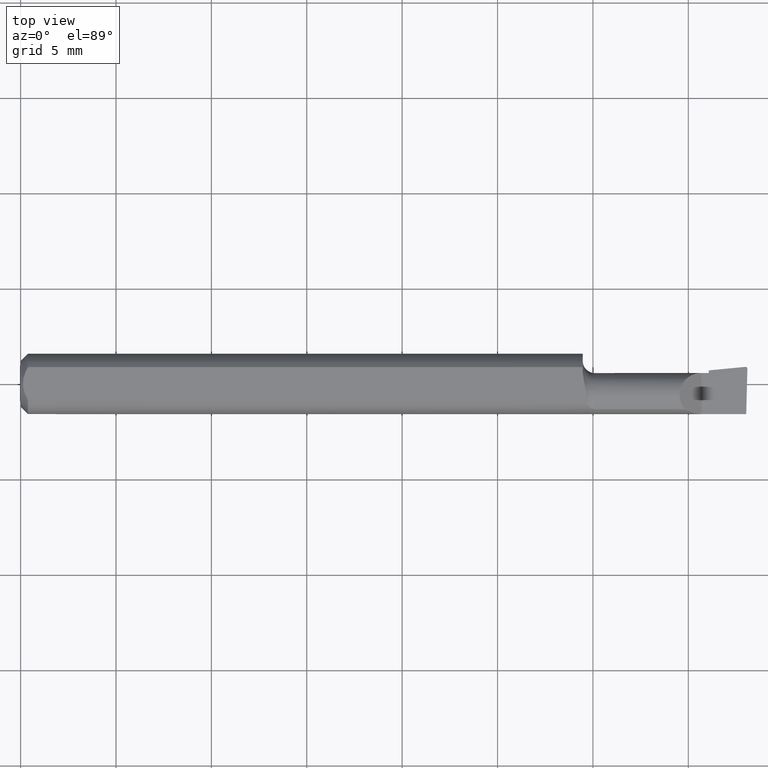
[diagram: clean part render]
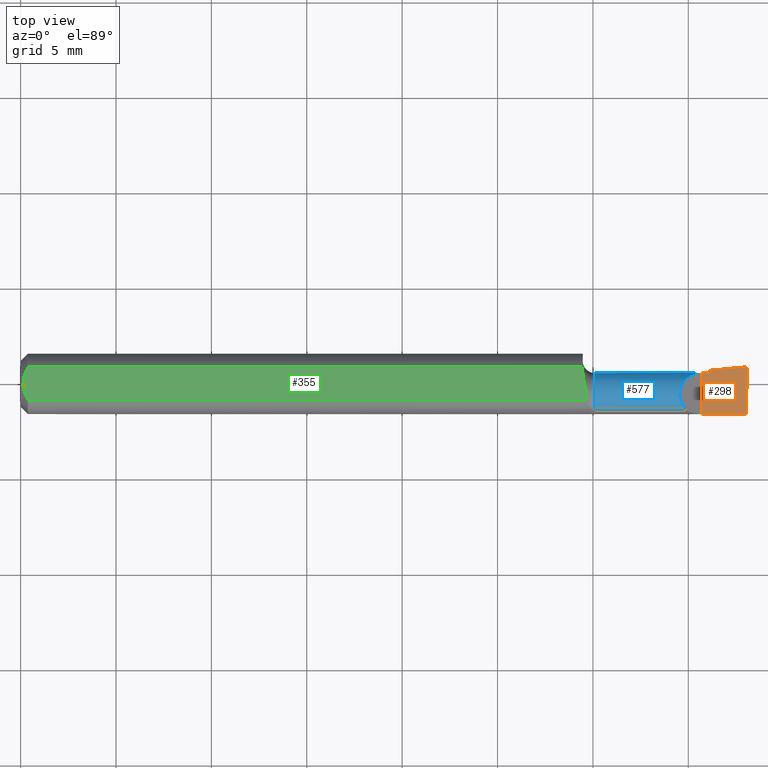
[diagram: same view with three faces highlighted in distinct colors, each labeled with its STEP entity id]
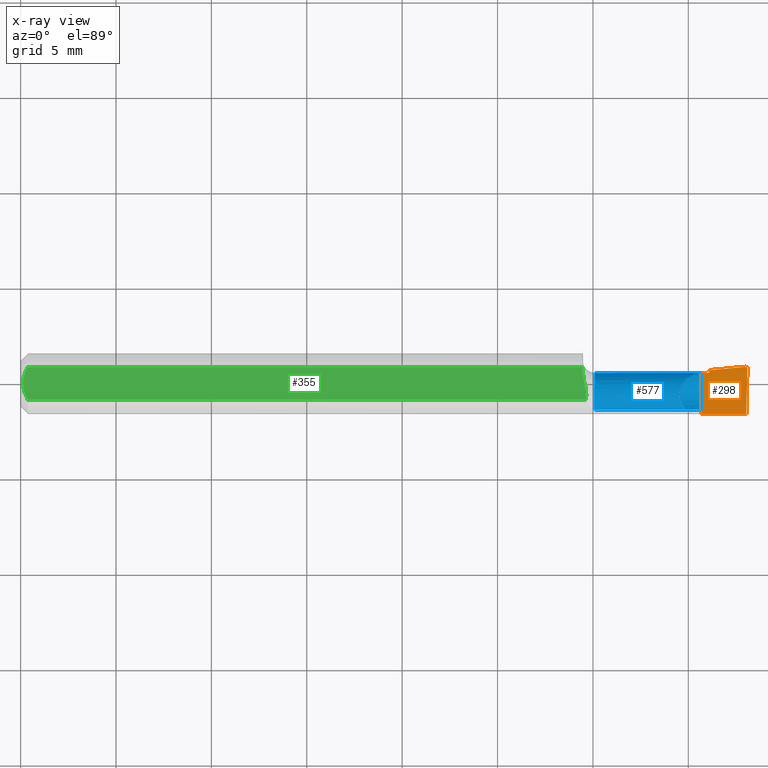
[diagram: x-ray of the same camera — body ghosted, the three highlighted faces saturated]
A machine part, top view with three faces highlighted in distinct colors.
The next image is the same camera in x-ray (body ghosted, the three faces saturated) — at least one of them is partly hidden behind the body in this view.
Their STEP definitions:

[orange] entity #298 — the highlighted planar face has unit normal (-0, 0, -1).
#3 = ORIENTED_EDGE ( 'NONE', *, *, #639, .F. ) ;
#5 = VECTOR ( 'NONE', #374, 39.37007874015748854 ) ;
#10 = DIRECTION ( 'NONE',  ( -1.000000000000000000, -0.0000000000000000000, -0.0000000000000000000 ) ) ;
#25 = PLANE ( 'NONE',  #479 ) ;
#42 = ORIENTED_EDGE ( 'NONE', *, *, #502, .T. ) ;
#44 = ORIENTED_EDGE ( 'NONE', *, *, #89, .F. ) ;
#52 = VERTEX_POINT ( 'NONE', #614 ) ;
#55 = LINE ( 'NONE', #487, #202 ) ;
#61 = CARTESIAN_POINT ( 'NONE',  ( 0.8971276994979847652, -0.02239999999999999977, 7.383056331043944924E-17 ) ) ;
#66 = CARTESIAN_POINT ( 'NONE',  ( 1.495634880358085672, 0.03522968678441162904, 5.345729797365519968E-19 ) ) ;
#69 = CARTESIAN_POINT ( 'NONE',  ( 1.499944638786153472, 0.03353584053852150942, 8.035340521517367735E-18 ) ) ;
#71 = ORIENTED_EDGE ( 'NONE', *, *, #536, .F. ) ;
#74 = CARTESIAN_POINT ( 'NONE',  ( 2.249639673992788601E-32, -0.06234999999999999570, 1.836970198721030427E-16 ) ) ;
#85 = LINE ( 'NONE', #189, #356 ) ;
#89 = EDGE_CURVE ( 'NONE', #52, #470, #357, .T. ) ;
#107 = VECTOR ( 'NONE', #595, 39.37007874015748143 ) ;
#111 = DIRECTION ( 'NONE',  ( -0.0000000000000000000, 1.000000000000000000, -0.0000000000000000000 ) ) ;
#115 = CARTESIAN_POINT ( 'NONE',  ( 1.499880855614015962, 0.03110005946548963576, 2.797005382439469068E-20 ) ) ;
#116 = EDGE_CURVE ( 'NONE', #470, #531, #55, .T. ) ;
#125 = CARTESIAN_POINT ( 'NONE',  ( 1.492525117049605887, -0.2498042633013223268, 9.154091479201484239E-19 ) ) ;
#131 = DIRECTION ( 'NONE',  ( -1.224646799147353947E-16, 0.0000000000000000000, -1.000000000000000000 ) ) ;
#149 = EDGE_LOOP ( 'NONE', ( #331, #579, #42, #71, #185, #3, #303, #44 ) ) ;
#182 = CARTESIAN_POINT ( 'NONE',  ( 1.496007920276498648, 0.03524764111161338836, 0.0000000000000000000 ) ) ;
#185 = ORIENTED_EDGE ( 'NONE', *, *, #511, .F. ) ;
#186 = CARTESIAN_POINT ( 'NONE',  ( 1.496007920276498648, 0.03524764111161338836, 0.0000000000000000000 ) ) ;
#189 = CARTESIAN_POINT ( 'NONE',  ( -2.563953169053420290E-19, 0.02264999999999996183, 1.836970198721030427E-16 ) ) ;
#202 = VECTOR ( 'NONE', #111, 39.37007874015748143 ) ;
#203 = VECTOR ( 'NONE', #550, 39.37007874015748854 ) ;
#206 =( BOUNDED_CURVE ( )  B_SPLINE_CURVE ( 3, ( #225, #69, #496, #186 ),
 .UNSPECIFIED., .F., .T. ) 
 B_SPLINE_CURVE_WITH_KNOTS ( ( 4, 4 ),
 ( 1.953092279228404671, 3.511516179717623309 ),
 .UNSPECIFIED. ) 
 CURVE ( )  GEOMETRIC_REPRESENTATION_ITEM ( )  RATIONAL_B_SPLINE_CURVE ( ( 1.000000000000000000, 0.8076450242550503589, 0.8076450242550503589, 1.000000000000000000 ) ) 
 REPRESENTATION_ITEM ( '' )  );
#223 = CARTESIAN_POINT ( 'NONE',  ( 1.495883579913029671, 0.03524764111161339530, 8.532676796529436165E-18 ) ) ;
#225 = CARTESIAN_POINT ( 'NONE',  ( 1.499880855614015962, 0.03110005946548963576, 2.797005382439469068E-20 ) ) ;
#250 = EDGE_CURVE ( 'NONE', #52, #570, #634, .T. ) ;
#269 = VERTEX_POINT ( 'NONE', #182 ) ;
#280 = CARTESIAN_POINT ( 'NONE',  ( 1.405000000000000249, -0.06235000000000005121, 1.163414459189985436E-17 ) ) ;
#285 = EDGE_CURVE ( 'NONE', #570, #269, #206, .T. ) ;
#298 = ADVANCED_FACE ( 'NONE', ( #387 ), #25, .F. ) ;
#303 = ORIENTED_EDGE ( 'NONE', *, *, #116, .F. ) ;
#318 =( BOUNDED_CURVE ( )  B_SPLINE_CURVE ( 3, ( #549, #223, #436, #66 ),
 .UNSPECIFIED., .F., .T. ) 
 B_SPLINE_CURVE_WITH_KNOTS ( ( 4, 4 ),
 ( 3.511516179717623309, 3.604018710826139671 ),
 .UNSPECIFIED. ) 
 CURVE ( )  GEOMETRIC_REPRESENTATION_ITEM ( )  RATIONAL_B_SPLINE_CURVE ( ( 1.000000000000000000, 0.9992870672494020834, 0.9992870672494020834, 1.000000000000000000 ) ) 
 REPRESENTATION_ITEM ( '' )  );
#331 = ORIENTED_EDGE ( 'NONE', *, *, #250, .T. ) ;
#356 = VECTOR ( 'NONE', #448, 39.37007874015748143 ) ;
#357 = LINE ( 'NONE', #74, #506 ) ;
#374 = DIRECTION ( 'NONE',  ( 0.9953961983671786307, 0.09584575252022466130, -1.219008768213809603E-16 ) ) ;
#387 = FACE_OUTER_BOUND ( 'NONE', #149, .T. ) ;
#397 = CARTESIAN_POINT ( 'NONE',  ( 1.420000000000000151, 0.02794687614419801361, 1.835460370743176819E-16 ) ) ;
#427 = CARTESIAN_POINT ( 'NONE',  ( 1.420000000000000151, 0.02265000000000000346, 1.836970198721031660E-16 ) ) ;
#431 = CARTESIAN_POINT ( 'NONE',  ( 1.405000000000000249, 0.02264999999999992714, 1.163414459189985436E-17 ) ) ;
#436 = CARTESIAN_POINT ( 'NONE',  ( 1.495759144559519527, 0.03524165206609279621, 8.547915732267098835E-18 ) ) ;
#441 = LINE ( 'NONE', #61, #5 ) ;
#448 = DIRECTION ( 'NONE',  ( 1.000000000000000000, 5.691349986800549142E-18, 0.0000000000000000000 ) ) ;
#470 = VERTEX_POINT ( 'NONE', #280 ) ;
#471 = VERTEX_POINT ( 'NONE', #601 ) ;
#479 = AXIS2_PLACEMENT_3D ( 'NONE', #653, #131, #498 ) ;
#487 = CARTESIAN_POINT ( 'NONE',  ( 1.405000000000000249, -0.2500000000000000555, 1.163414459189985436E-17 ) ) ;
#496 = CARTESIAN_POINT ( 'NONE',  ( 1.498346190944504830, 0.03524764111161336755, 8.231093924805310805E-18 ) ) ;
#498 = DIRECTION ( 'NONE',  ( -1.000000000000000000, 0.0000000000000000000, 1.224646799147353947E-16 ) ) ;
#502 = EDGE_CURVE ( 'NONE', #269, #471, #318, .T. ) ;
#506 = VECTOR ( 'NONE', #10, 39.37007874015748143 ) ;
#511 = EDGE_CURVE ( 'NONE', #542, #647, #603, .T. ) ;
#531 = VERTEX_POINT ( 'NONE', #431 ) ;
#536 = EDGE_CURVE ( 'NONE', #647, #471, #441, .T. ) ;
#542 = VERTEX_POINT ( 'NONE', #427 ) ;
#549 = CARTESIAN_POINT ( 'NONE',  ( 1.496007920276498648, 0.03524764111161338836, 0.0000000000000000000 ) ) ;
#550 = DIRECTION ( 'NONE',  ( 0.02617694830784707966, 0.9996573249755579260, -3.158139334220691399E-18 ) ) ;
#570 = VERTEX_POINT ( 'NONE', #115 ) ;
#579 = ORIENTED_EDGE ( 'NONE', *, *, #285, .T. ) ;
#595 = DIRECTION ( 'NONE',  ( -5.691349986800549142E-18, 1.000000000000000000, 6.969893544162626646E-34 ) ) ;
#601 = CARTESIAN_POINT ( 'NONE',  ( 1.495634880358085672, 0.03522968678441162904, 5.345729797365519968E-19 ) ) ;
#603 = LINE ( 'NONE', #645, #107 ) ;
#614 = CARTESIAN_POINT ( 'NONE',  ( 1.497433779686219379, -0.06235000000000005121, 3.231995301756449018E-19 ) ) ;
#634 = LINE ( 'NONE', #125, #203 ) ;
#639 = EDGE_CURVE ( 'NONE', #531, #542, #85, .T. ) ;
#645 = CARTESIAN_POINT ( 'NONE',  ( 1.420000000000000151, -0.2500000000000000555, 9.797174393178828616E-18 ) ) ;
#647 = VERTEX_POINT ( 'NONE', #397 ) ;
#653 = CARTESIAN_POINT ( 'NONE',  ( 1.500000000000000222, -0.2500000000000000555, 0.0000000000000000000 ) ) ;

[blue] entity #577 — the highlighted cylindrical surface (edge-blend (fillet) strip) has radius 1.1443 mm, axis along (-1, -0, -0).
#11 = CARTESIAN_POINT ( 'NONE',  ( 0.0000000000000000000, -0.02240000000000000324, 0.0000000000000000000 ) ) ;
#14 = CARTESIAN_POINT ( 'NONE',  ( 1.493589448587071544, -0.05267366071428577351, -0.03336177403790612644 ) ) ;
#27 = CIRCLE ( 'NONE', #113, 0.04504999999999999283 ) ;
#53 = VECTOR ( 'NONE', #668, 39.37007874015748143 ) ;
#81 = ORIENTED_EDGE ( 'NONE', *, *, #314, .T. ) ;
#85 = LINE ( 'NONE', #189, #356 ) ;
#112 = CIRCLE ( 'NONE', #324, 0.04504999999999997201 ) ;
#113 = AXIS2_PLACEMENT_3D ( 'NONE', #217, #583, #184 ) ;
#118 = ORIENTED_EDGE ( 'NONE', *, *, #619, .F. ) ;
#122 = CARTESIAN_POINT ( 'NONE',  ( 1.420000000000000151, 0.01811171944543692874, -0.01970540757188761136 ) ) ;
#143 = VERTEX_POINT ( 'NONE', #205 ) ;
#144 = CARTESIAN_POINT ( 'NONE',  ( 1.302500000000000213, -0.05267366071428577351, -0.03336177403790612644 ) ) ;
#150 = VERTEX_POINT ( 'NONE', #424 ) ;
#153 = AXIS2_PLACEMENT_3D ( 'NONE', #11, #533, #476 ) ;
#161 = VECTOR ( 'NONE', #443, 39.37007874015748143 ) ;
#162 = EDGE_LOOP ( 'NONE', ( #260, #637, #421, #253, #388, #465, #621, #118, #81, #261 ) ) ;
#165 = DIRECTION ( 'NONE',  ( 1.000000000000000000, 5.691349986800549142E-18, 0.0000000000000000000 ) ) ;
#179 = CARTESIAN_POINT ( 'NONE',  ( 1.185000000000000275, -0.02239999999999999630, 0.0000000000000000000 ) ) ;
#184 = DIRECTION ( 'NONE',  ( 0.0000000000000000000, -1.000000000000000000, 0.0000000000000000000 ) ) ;
#189 = CARTESIAN_POINT ( 'NONE',  ( -2.563953169053420290E-19, 0.02264999999999996183, 1.836970198721030427E-16 ) ) ;
#194 = EDGE_CURVE ( 'NONE', #213, #531, #371, .T. ) ;
#205 = CARTESIAN_POINT ( 'NONE',  ( 1.420000000000000151, -0.001476535193823069530, -0.03989625446711349277 ) ) ;
#213 = VERTEX_POINT ( 'NONE', #643 ) ;
#217 = CARTESIAN_POINT ( 'NONE',  ( 1.420000000000000151, -0.02239999999999999630, 0.0000000000000000000 ) ) ;
#219 = CARTESIAN_POINT ( 'NONE',  ( 1.371638225962093838, -0.05267366071428578739, 0.03336177403790611951 ) ) ;
#226 = LINE ( 'NONE', #144, #53 ) ;
#229 = DIRECTION ( 'NONE',  ( 1.000000000000000000, 5.691349986800549142E-18, 0.0000000000000000000 ) ) ;
#235 = DIRECTION ( 'NONE',  ( -1.000000000000000000, -5.691349986800549142E-18, -0.0000000000000000000 ) ) ;
#244 = VERTEX_POINT ( 'NONE', #122 ) ;
#249 = VERTEX_POINT ( 'NONE', #547 ) ;
#251 = VECTOR ( 'NONE', #165, 39.37007874015748143 ) ;
#253 = ORIENTED_EDGE ( 'NONE', *, *, #576, .T. ) ;
#254 = AXIS2_PLACEMENT_3D ( 'NONE', #179, #493, #439 ) ;
#260 = ORIENTED_EDGE ( 'NONE', *, *, #545, .F. ) ;
#261 = ORIENTED_EDGE ( 'NONE', *, *, #463, .F. ) ;
#266 = CARTESIAN_POINT ( 'NONE',  ( 1.492650040401416689, -0.03372388044486964581, -0.04504999999999998589 ) ) ;
#270 = CARTESIAN_POINT ( 'NONE',  ( 1.405000000000000249, 0.02264999999999992714, 1.163414459189985436E-17 ) ) ;
#302 = VERTEX_POINT ( 'NONE', #336 ) ;
#314 = EDGE_CURVE ( 'NONE', #143, #670, #499, .T. ) ;
#316 = VERTEX_POINT ( 'NONE', #503 ) ;
#324 = AXIS2_PLACEMENT_3D ( 'NONE', #552, #229, #604 ) ;
#336 = CARTESIAN_POINT ( 'NONE',  ( 1.185000000000000275, -0.05267366071428584290, -0.03336177403790605706 ) ) ;
#351 = CIRCLE ( 'NONE', #254, 0.04504999999999996507 ) ;
#356 = VECTOR ( 'NONE', #448, 39.37007874015748143 ) ;
#358 = CARTESIAN_POINT ( 'NONE',  ( 1.420000000000000151, -0.02239999999999999630, -0.04504999999999998589 ) ) ;
#371 =( BOUNDED_CURVE ( )  B_SPLINE_CURVE ( 3, ( #219, #486, #593, #270 ),
 .UNSPECIFIED., .F., .F. ) 
 B_SPLINE_CURVE_WITH_KNOTS ( ( 4, 4 ),
 ( 5.546277306536651963, 7.853981633974482790 ),
 .UNSPECIFIED. ) 
 CURVE ( )  GEOMETRIC_REPRESENTATION_ITEM ( )  RATIONAL_B_SPLINE_CURVE ( ( 1.000000000000000000, 0.6033122017619988453, 0.6033122017619988453, 1.000000000000000000 ) ) 
 REPRESENTATION_ITEM ( '' )  );
#373 = CYLINDRICAL_SURFACE ( 'NONE', #153, 0.04504999999999997201 ) ;
#388 = ORIENTED_EDGE ( 'NONE', *, *, #194, .T. ) ;
#402 = EDGE_CURVE ( 'NONE', #249, #302, #226, .T. ) ;
#417 = LINE ( 'NONE', #495, #161 ) ;
#421 = ORIENTED_EDGE ( 'NONE', *, *, #469, .F. ) ;
#424 = CARTESIAN_POINT ( 'NONE',  ( 1.185000000000000275, -0.05267366071428580820, 0.03336177403790609175 ) ) ;
#427 = CARTESIAN_POINT ( 'NONE',  ( 1.420000000000000151, 0.02265000000000000346, 1.836970198721031660E-16 ) ) ;
#431 = CARTESIAN_POINT ( 'NONE',  ( 1.405000000000000249, 0.02264999999999992714, 1.163414459189985436E-17 ) ) ;
#433 = EDGE_CURVE ( 'NONE', #542, #244, #27, .T. ) ;
#439 = DIRECTION ( 'NONE',  ( 0.0000000000000000000, -1.000000000000000000, 0.0000000000000000000 ) ) ;
#443 = DIRECTION ( 'NONE',  ( -1.000000000000000000, 5.691349986800548372E-18, -0.0000000000000000000 ) ) ;
#448 = DIRECTION ( 'NONE',  ( 1.000000000000000000, 5.691349986800549142E-18, 0.0000000000000000000 ) ) ;
#463 = EDGE_CURVE ( 'NONE', #316, #670, #417, .T. ) ;
#465 = ORIENTED_EDGE ( 'NONE', *, *, #639, .T. ) ;
#469 = EDGE_CURVE ( 'NONE', #150, #302, #351, .T. ) ;
#476 = DIRECTION ( 'NONE',  ( 5.691349986800549913E-18, -1.000000000000000000, 0.0000000000000000000 ) ) ;
#486 = CARTESIAN_POINT ( 'NONE',  ( 1.341051366671215384, -0.01896673977657555368, 0.06394863332878404638 ) ) ;
#493 = DIRECTION ( 'NONE',  ( -1.000000000000000000, -5.691349986800549142E-18, -0.0000000000000000000 ) ) ;
#495 = CARTESIAN_POINT ( 'NONE',  ( 1.500000000000000222, -0.02239999999999999630, -0.04504999999999998589 ) ) ;
#499 = CIRCLE ( 'NONE', #522, 0.04504999999999999283 ) ;
#503 = CARTESIAN_POINT ( 'NONE',  ( 1.492946566646605078, -0.02239999999999999630, -0.04504999999999998589 ) ) ;
#522 = AXIS2_PLACEMENT_3D ( 'NONE', #558, #235, #612 ) ;
#531 = VERTEX_POINT ( 'NONE', #431 ) ;
#533 = DIRECTION ( 'NONE',  ( -1.000000000000000000, -5.691349986800549142E-18, -0.0000000000000000000 ) ) ;
#535 = LINE ( 'NONE', #586, #251 ) ;
#542 = VERTEX_POINT ( 'NONE', #427 ) ;
#545 = EDGE_CURVE ( 'NONE', #249, #316, #674, .T. ) ;
#547 = CARTESIAN_POINT ( 'NONE',  ( 1.493589448587071544, -0.05267366071428577351, -0.03336177403790612644 ) ) ;
#552 = CARTESIAN_POINT ( 'NONE',  ( 1.420000000000000151, -0.02239999999999999630, 0.0000000000000000000 ) ) ;
#558 = CARTESIAN_POINT ( 'NONE',  ( 1.420000000000000151, -0.02239999999999999630, 0.0000000000000000000 ) ) ;
#576 = EDGE_CURVE ( 'NONE', #150, #213, #535, .T. ) ;
#577 = ADVANCED_FACE ( 'NONE', ( #658 ), #373, .T. ) ;
#583 = DIRECTION ( 'NONE',  ( -1.000000000000000000, -5.691349986800549142E-18, -0.0000000000000000000 ) ) ;
#586 = CARTESIAN_POINT ( 'NONE',  ( 1.302500000000000213, -0.05267366071428577351, 0.03336177403790612644 ) ) ;
#589 = CARTESIAN_POINT ( 'NONE',  ( 1.492946566646605078, -0.02239999999999999630, -0.04504999999999998589 ) ) ;
#593 = CARTESIAN_POINT ( 'NONE',  ( 1.359483931624303699, 0.02264999999999997571, 0.04551606837569584230 ) ) ;
#604 = DIRECTION ( 'NONE',  ( 0.0000000000000000000, -1.000000000000000000, 1.776356839400250465E-15 ) ) ;
#612 = DIRECTION ( 'NONE',  ( 0.0000000000000000000, -1.000000000000000000, 0.0000000000000000000 ) ) ;
#619 = EDGE_CURVE ( 'NONE', #143, #244, #112, .T. ) ;
#621 = ORIENTED_EDGE ( 'NONE', *, *, #433, .T. ) ;
#637 = ORIENTED_EDGE ( 'NONE', *, *, #402, .T. ) ;
#639 = EDGE_CURVE ( 'NONE', #531, #542, #85, .T. ) ;
#641 = CARTESIAN_POINT ( 'NONE',  ( 1.492874371667013866, -0.04428776192107813231, -0.04097143695815294584 ) ) ;
#643 = CARTESIAN_POINT ( 'NONE',  ( 1.371638225962093838, -0.05267366071428578739, 0.03336177403790611951 ) ) ;
#658 = FACE_OUTER_BOUND ( 'NONE', #162, .T. ) ;
#668 = DIRECTION ( 'NONE',  ( -1.000000000000000000, -5.691349986800549142E-18, -0.0000000000000000000 ) ) ;
#670 = VERTEX_POINT ( 'NONE', #358 ) ;
#674 =( BOUNDED_CURVE ( )  B_SPLINE_CURVE ( 3, ( #14, #641, #266, #589 ),
 .UNSPECIFIED., .F., .F. ) 
 B_SPLINE_CURVE_WITH_KNOTS ( ( 4, 4 ),
 ( 5.756326750816665339, 6.493234751459597831 ),
 .UNSPECIFIED. ) 
 CURVE ( )  GEOMETRIC_REPRESENTATION_ITEM ( )  RATIONAL_B_SPLINE_CURVE ( ( 1.000000000000000000, 0.9552568590268901705, 0.9552568590268901705, 1.000000000000000000 ) ) 
 REPRESENTATION_ITEM ( '' )  );

[green] entity #355 — the highlighted planar face has unit normal (0, -0, -1).
#13 = CARTESIAN_POINT ( 'NONE',  ( 0.009678036133109307534, -0.02325481837211496039, 0.05235000000000000070 ) ) ;
#26 = CARTESIAN_POINT ( 'NONE',  ( 1.166182189689074944, -0.03386738844375222074, 0.05235000000000000070 ) ) ;
#31 = CARTESIAN_POINT ( 'NONE',  ( 1.163943373083574873, -0.0009488278625737596667, 0.05234999999999998682 ) ) ;
#32 = CARTESIAN_POINT ( 'NONE',  ( 0.009669996313769784607, 0.02323004575534281385, 0.05234999999999998682 ) ) ;
#38 = CARTESIAN_POINT ( 'NONE',  ( 1.166182189689074944, -0.03386738844375222074, 0.05235000000000000070 ) ) ;
#41 = VECTOR ( 'NONE', #489, 39.37007874015748143 ) ;
#45 = EDGE_CURVE ( 'NONE', #181, #198, #518, .T. ) ;
#46 = DIRECTION ( 'NONE',  ( 5.691349986800549142E-18, -1.000000000000000000, 7.598598113218357399E-17 ) ) ;
#51 = ORIENTED_EDGE ( 'NONE', *, *, #151, .F. ) ;
#63 = CARTESIAN_POINT ( 'NONE',  ( 1.160000000000000142, 0.03386738844375224156, 0.05235000000000000070 ) ) ;
#64 = CARTESIAN_POINT ( 'NONE',  ( 1.160000000000000142, 0.02414546164772668826, 0.05235000000000000070 ) ) ;
#68 = EDGE_CURVE ( 'NONE', #369, #391, #158, .T. ) ;
#77 = CARTESIAN_POINT ( 'NONE',  ( 1.167516889514667700, -0.02435447415594420989, 0.05235000000000000070 ) ) ;
#82 = CARTESIAN_POINT ( 'NONE',  ( 1.164818038875745421, -0.004579228880846302439, 0.05235000000000001458 ) ) ;
#86 = CARTESIAN_POINT ( 'NONE',  ( 0.01500000000000000465, 0.03386738844375223462, 0.05234999999999997988 ) ) ;
#106 = VECTOR ( 'NONE', #675, 39.37007874015748143 ) ;
#114 = CARTESIAN_POINT ( 'NONE',  ( 0.01500000000000185039, -0.03386738844380016850, 0.05235000000000000070 ) ) ;
#120 = ORIENTED_EDGE ( 'NONE', *, *, #68, .F. ) ;
#130 = CARTESIAN_POINT ( 'NONE',  ( 1.162747134522028603, 0.004017454403653751213, 0.05235000000000000764 ) ) ;
#134 = CARTESIAN_POINT ( 'NONE',  ( 0.004999999999989931769, 7.898418181085889318E-16, 0.05235000000000000070 ) ) ;
#151 = EDGE_CURVE ( 'NONE', #391, #442, #376, .T. ) ;
#158 = LINE ( 'NONE', #494, #106 ) ;
#167 = CARTESIAN_POINT ( 'NONE',  ( 0.006057557792978142223, -0.01187252718384441616, 0.05234999999999998682 ) ) ;
#180 = LINE ( 'NONE', #435, #41 ) ;
#181 = VERTEX_POINT ( 'NONE', #63 ) ;
#187 = CARTESIAN_POINT ( 'NONE',  ( 1.162172826817815530, 0.006508548278878150024, 0.05235000000000000070 ) ) ;
#193 = CARTESIAN_POINT ( 'NONE',  ( 1.500000000000000222, 0.1123499999999999915, 0.05234999999999998682 ) ) ;
#197 = CARTESIAN_POINT ( 'NONE',  ( 0.01500000000000185039, -0.03386738844380016850, 0.05235000000000000070 ) ) ;
#198 = VERTEX_POINT ( 'NONE', #64 ) ;
#210 = EDGE_CURVE ( 'NONE', #599, #181, #180, .T. ) ;
#215 = CARTESIAN_POINT ( 'NONE',  ( 0.004999999999989931769, 7.898418181085889318E-16, 0.05235000000000000070 ) ) ;
#222 = B_SPLINE_CURVE_WITH_KNOTS ( 'NONE', 3,
 ( #501, #390, #554, #187, #130, #497, #31, #394, #82, #339, #446, #77, #335, #26 ),
 .UNSPECIFIED., .F., .F.,
 ( 4, 2, 2, 2, 2, 2, 4 ),
 ( 0.008234143088603523147, 0.008591734916881400841, 0.008770530831020339688, 0.008859928788089806509, 0.008949326745159275065, 0.009306918573437151024, 0.009664510401715026983 ),
 .UNSPECIFIED. ) ;
#241 = ORIENTED_EDGE ( 'NONE', *, *, #325, .F. ) ;
#259 = ORIENTED_EDGE ( 'NONE', *, *, #210, .F. ) ;
#262 = CARTESIAN_POINT ( 'NONE',  ( 0.01500000000000000465, 0.03386738844375223462, 0.05234999999999997988 ) ) ;
#279 = CARTESIAN_POINT ( 'NONE',  ( 1.160000000000000142, 0.1123499999999999915, 0.05234999999999998682 ) ) ;
#284 = CARTESIAN_POINT ( 'NONE',  ( 0.004999999999989931769, 7.898418181085889318E-16, 0.05235000000000000070 ) ) ;
#291 = DIRECTION ( 'NONE',  ( 0.0000000000000000000, 1.000000000000000000, -7.598598113218357399E-17 ) ) ;
#325 = EDGE_CURVE ( 'NONE', #442, #599, #582, .T. ) ;
#335 = CARTESIAN_POINT ( 'NONE',  ( 1.167065763150419766, -0.02914627190158987358, 0.05234999999999998682 ) ) ;
#339 = CARTESIAN_POINT ( 'NONE',  ( 1.166144749454605112, -0.01034308142135322885, 0.05235000000000000764 ) ) ;
#340 = CARTESIAN_POINT ( 'NONE',  ( 0.006064493299689842180, 0.01189382783781397189, 0.05235000000000000070 ) ) ;
#355 = ADVANCED_FACE ( 'NONE', ( #609 ), #507, .F. ) ;
#369 = VERTEX_POINT ( 'NONE', #38 ) ;
#376 = B_SPLINE_CURVE_WITH_KNOTS ( 'NONE', 3,
 ( #114, #484, #13, #167, #538, #215 ),
 .UNSPECIFIED., .F., .F.,
 ( 4, 2, 4 ),
 ( 0.002133667072902290657, 0.002585433046183636171, 0.003037199019464981685 ),
 .UNSPECIFIED. ) ;
#390 = CARTESIAN_POINT ( 'NONE',  ( 1.160000000000000142, 0.01903747135664269480, 0.05235000000000000070 ) ) ;
#391 = VERTEX_POINT ( 'NONE', #197 ) ;
#394 = CARTESIAN_POINT ( 'NONE',  ( 1.164543615195409831, -0.003431463083333151191, 0.05235000000000000764 ) ) ;
#395 = CARTESIAN_POINT ( 'NONE',  ( 0.01218518006020415448, 0.02868529347538067639, 0.05235000000000000070 ) ) ;
#401 = ORIENTED_EDGE ( 'NONE', *, *, #655, .F. ) ;
#435 = CARTESIAN_POINT ( 'NONE',  ( 0.0000000000000000000, 0.03386738844375223462, 0.05234999999999997988 ) ) ;
#440 = EDGE_LOOP ( 'NONE', ( #401, #491, #259, #241, #51, #120 ) ) ;
#442 = VERTEX_POINT ( 'NONE', #284 ) ;
#446 = CARTESIAN_POINT ( 'NONE',  ( 1.167029704074272312, -0.01497150789875727542, 0.05235000000000000764 ) ) ;
#484 = CARTESIAN_POINT ( 'NONE',  ( 0.01216137397042175820, -0.02864146636719541034, 0.05235000000000000070 ) ) ;
#489 = DIRECTION ( 'NONE',  ( 1.000000000000000000, 0.0000000000000000000, 0.0000000000000000000 ) ) ;
#491 = ORIENTED_EDGE ( 'NONE', *, *, #45, .F. ) ;
#494 = CARTESIAN_POINT ( 'NONE',  ( 0.0000000000000000000, -0.03386738844375222768, 0.05234999999999997988 ) ) ;
#497 = CARTESIAN_POINT ( 'NONE',  ( 1.163640393495456893, 0.0002918085034137845170, 0.05234999999999998682 ) ) ;
#501 = CARTESIAN_POINT ( 'NONE',  ( 1.160000000000000142, 0.02414546164772668826, 0.05235000000000000070 ) ) ;
#507 = PLANE ( 'NONE',  #659 ) ;
#518 = LINE ( 'NONE', #279, #608 ) ;
#538 = CARTESIAN_POINT ( 'NONE',  ( 0.004999999999998879473, -0.005957634400466955450, 0.05235000000000000070 ) ) ;
#554 = CARTESIAN_POINT ( 'NONE',  ( 1.160684336333183575, 0.01400540109987312605, 0.05234999999999998682 ) ) ;
#582 = B_SPLINE_CURVE_WITH_KNOTS ( 'NONE', 3,
 ( #134, #660, #340, #32, #395, #86 ),
 .UNSPECIFIED., .F., .F.,
 ( 4, 2, 4 ),
 ( 0.003037199019464981685, 0.003488061124369676216, 0.003938923229274370746 ),
 .UNSPECIFIED. ) ;
#599 = VERTEX_POINT ( 'NONE', #262 ) ;
#608 = VECTOR ( 'NONE', #46, 39.37007874015748143 ) ;
#609 = FACE_OUTER_BOUND ( 'NONE', #440, .T. ) ;
#616 = DIRECTION ( 'NONE',  ( 0.0000000000000000000, -7.598598113218357399E-17, -1.000000000000000000 ) ) ;
#655 = EDGE_CURVE ( 'NONE', #198, #369, #222, .T. ) ;
#659 = AXIS2_PLACEMENT_3D ( 'NONE', #193, #616, #291 ) ;
#660 = CARTESIAN_POINT ( 'NONE',  ( 0.004999999999999264581, 0.005945714695019511074, 0.05235000000000000070 ) ) ;
#675 = DIRECTION ( 'NONE',  ( -1.000000000000000000, -0.0000000000000000000, -0.0000000000000000000 ) ) ;